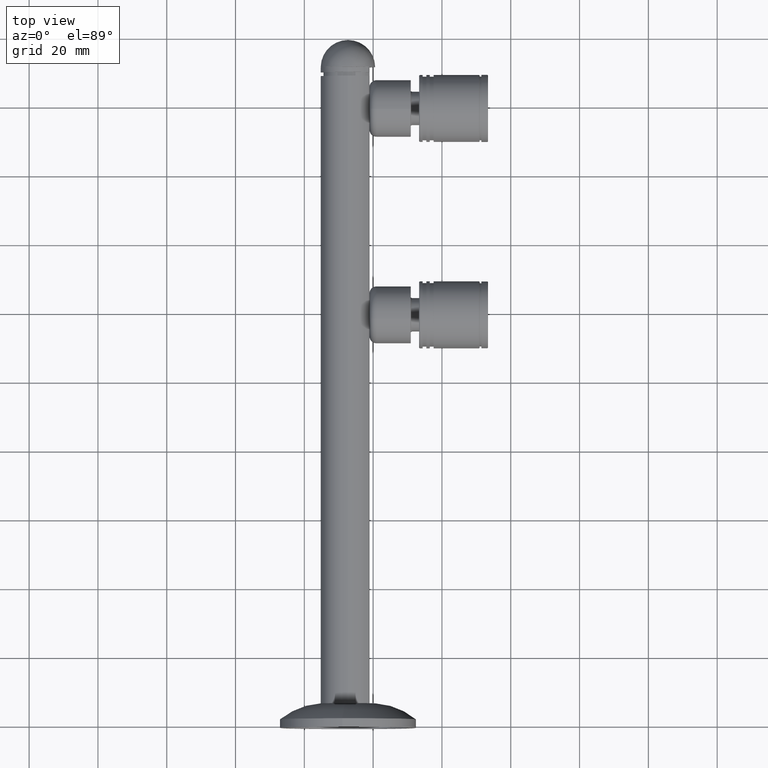
[diagram: clean part render]
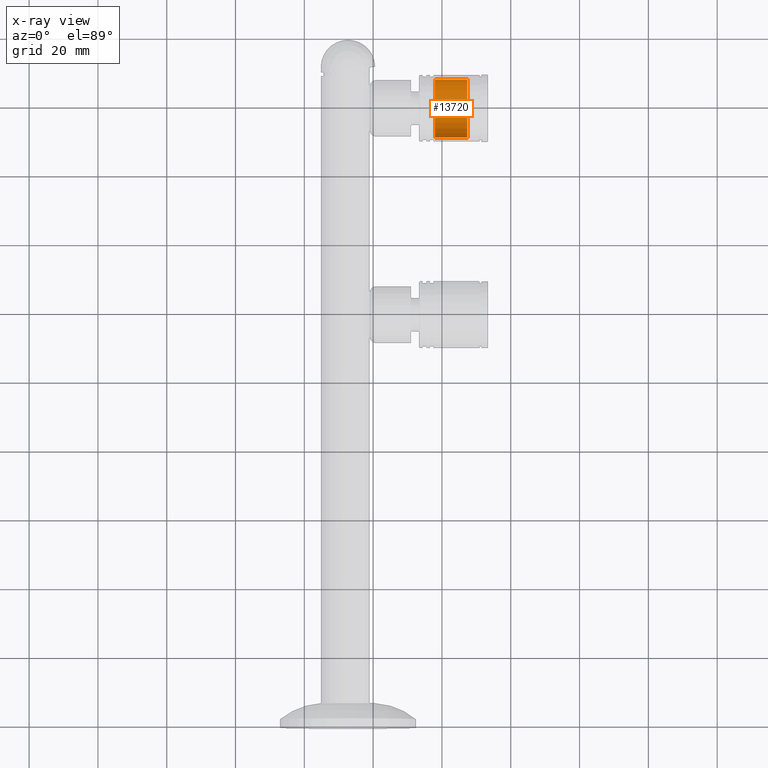
[diagram: x-ray — body ghosted, one internal face saturated and labeled with its STEP entity id]
A machine part, top view, then the same camera in x-ray: the body is ghosted and one INTERNAL B-rep face — a face not visible from any outside direction — is saturated and labeled: STEP entity #13720.
In plain terms, the highlighted cylindrical surface (edge-blend (fillet) strip) has radius 8.45 mm, axis along (-1, -0, -0).
Its self-contained STEP definition (entity closure, byte-faithful):
#247 = EDGE_LOOP ( 'NONE', ( #14270, #1856, #2129, #12938 ) ) ;
#1260 = LINE ( 'NONE', #6819, #2834 ) ;
#1856 = ORIENTED_EDGE ( 'NONE', *, *, #4391, .T. ) ;
#1964 = AXIS2_PLACEMENT_3D ( 'NONE', #9752, #8460, #3832 ) ;
#2027 = AXIS2_PLACEMENT_3D ( 'NONE', #13486, #17817, #13424 ) ;
#2129 = ORIENTED_EDGE ( 'NONE', *, *, #6024, .T. ) ;
#2579 = CYLINDRICAL_SURFACE ( 'NONE', #18728, 8.450000000000004619 ) ;
#2625 = CIRCLE ( 'NONE', #2027, 8.450000000000004619 ) ;
#2834 = VECTOR ( 'NONE', #12989, 1000.000000000000000 ) ;
#3500 = FACE_OUTER_BOUND ( 'NONE', #247, .T. ) ;
#3832 = DIRECTION ( 'NONE',  ( 1.000000000000000000, 0.000000000000000000, 0.000000000000000000 ) ) ;
#4391 = EDGE_CURVE ( 'NONE', #10884, #15193, #17417, .T. ) ;
#6024 = EDGE_CURVE ( 'NONE', #15193, #7734, #2625, .T. ) ;
#6411 = CARTESIAN_POINT ( 'NONE',  ( 8.449999999999999289, 10.36934397916138550, 0.000000000000000000 ) ) ;
#6819 = CARTESIAN_POINT ( 'NONE',  ( 8.449999999999999289, 7.104752881969674058E-15, 0.000000000000000000 ) ) ;
#7094 = VERTEX_POINT ( 'NONE', #17831 ) ;
#7122 = CARTESIAN_POINT ( 'NONE',  ( -8.450000000000009948, 19.76934397916141961, 1.034826545279514053E-15 ) ) ;
#7734 = VERTEX_POINT ( 'NONE', #6411 ) ;
#8460 = DIRECTION ( 'NONE',  ( -7.981960134060291135E-20, -1.000000000000000000, -0.000000000000000000 ) ) ;
#9306 = DIRECTION ( 'NONE',  ( 1.000000000000000000, -7.981960134062201416E-20, 0.000000000000000000 ) ) ;
#9752 = CARTESIAN_POINT ( 'NONE',  ( -5.327492537045569628E-15, 19.76934397916141961, 0.000000000000000000 ) ) ;
#10060 = CIRCLE ( 'NONE', #1964, 8.450000000000004619 ) ;
#10083 = EDGE_CURVE ( 'NONE', #10884, #7094, #10060, .T. ) ;
#10126 = CARTESIAN_POINT ( 'NONE',  ( -8.450000000000009948, 10.36934397916138550, 1.034826545279514053E-15 ) ) ;
#10884 = VERTEX_POINT ( 'NONE', #7122 ) ;
#11455 = DIRECTION ( 'NONE',  ( -7.981960134060291135E-20, -1.000000000000000000, -0.000000000000000000 ) ) ;
#12938 = ORIENTED_EDGE ( 'NONE', *, *, #16266, .F. ) ;
#12989 = DIRECTION ( 'NONE',  ( -7.981960134060291135E-20, -1.000000000000000000, -0.000000000000000000 ) ) ;
#13020 = VECTOR ( 'NONE', #11455, 1000.000000000000000 ) ;
#13424 = DIRECTION ( 'NONE',  ( 1.000000000000000000, 0.000000000000000000, 0.000000000000000000 ) ) ;
#13486 = CARTESIAN_POINT ( 'NONE',  ( -5.328242841298171851E-15, 10.36934397916138550, 0.000000000000000000 ) ) ;
#13720 = ADVANCED_FACE ( 'NONE', ( #3500 ), #2579, .F. ) ;
#14270 = ORIENTED_EDGE ( 'NONE', *, *, #10083, .F. ) ;
#14921 = CARTESIAN_POINT ( 'NONE',  ( -5.329070518200751394E-15, 7.105427357601001859E-15, 0.000000000000000000 ) ) ;
#15193 = VERTEX_POINT ( 'NONE', #10126 ) ;
#15769 = CARTESIAN_POINT ( 'NONE',  ( -8.450000000000009948, 7.106101833232329659E-15, 1.034826545279514053E-15 ) ) ;
#16266 = EDGE_CURVE ( 'NONE', #7094, #7734, #1260, .T. ) ;
#17417 = LINE ( 'NONE', #15769, #13020 ) ;
#17817 = DIRECTION ( 'NONE',  ( -7.981960134060291135E-20, -1.000000000000000000, -0.000000000000000000 ) ) ;
#17831 = CARTESIAN_POINT ( 'NONE',  ( 8.449999999999999289, 19.76934397916141961, 0.000000000000000000 ) ) ;
#18364 = DIRECTION ( 'NONE',  ( -7.981960134060291135E-20, -1.000000000000000000, -0.000000000000000000 ) ) ;
#18728 = AXIS2_PLACEMENT_3D ( 'NONE', #14921, #18364, #9306 ) ;